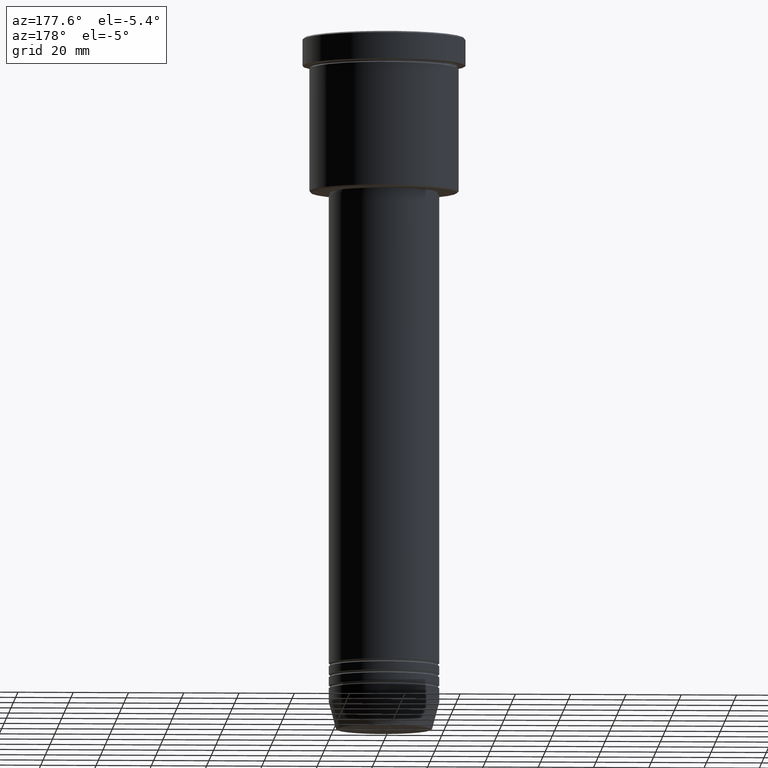
[diagram: clean part render]
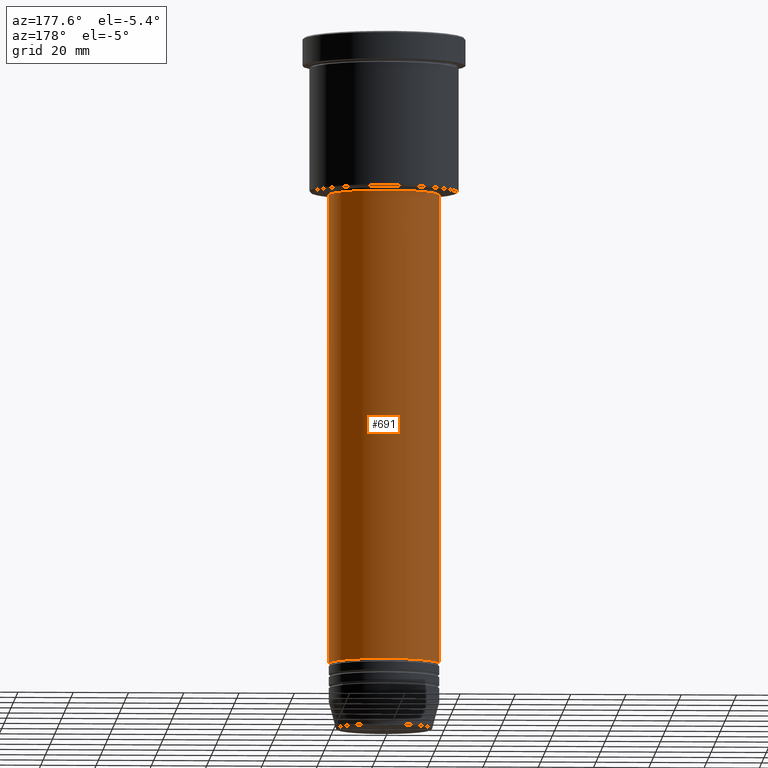
[diagram: same view with one face highlighted and labeled with its STEP entity id]
A machine part, auxiliary view. The second image highlights one B-rep face of the part: STEP entity #691.
In plain terms, the highlighted cylindrical surface (partial cylindrical patch) has radius 20 mm, axis along (-0, -0, 1).
Its self-contained STEP definition (entity closure, byte-faithful):
#15 = EDGE_LOOP ( 'NONE', ( #586, #517, #913, #34 ) ) ;
#34 = ORIENTED_EDGE ( 'NONE', *, *, #991, .F. ) ;
#48 = CARTESIAN_POINT ( 'NONE',  ( 0.000000000000000000, 0.000000000000000000, -226.9999999999998863 ) ) ;
#56 = CARTESIAN_POINT ( 'NONE',  ( -19.99999999999999645, 2.449293598294706119E-15, 0.000000000000000000 ) ) ;
#168 = DIRECTION ( 'NONE',  ( 1.000000000000000000, 0.000000000000000000, 0.000000000000000000 ) ) ;
#221 = LINE ( 'NONE', #491, #1004 ) ;
#234 = VECTOR ( 'NONE', #512, 1000.000000000000000 ) ;
#254 = EDGE_CURVE ( 'NONE', #973, #415, #713, .T. ) ;
#255 = CARTESIAN_POINT ( 'NONE',  ( 0.000000000000000000, 0.000000000000000000, 0.000000000000000000 ) ) ;
#260 = FACE_OUTER_BOUND ( 'NONE', #15, .T. ) ;
#277 = EDGE_CURVE ( 'NONE', #600, #572, #927, .T. ) ;
#333 = DIRECTION ( 'NONE',  ( -0.000000000000000000, -0.000000000000000000, 1.000000000000000000 ) ) ;
#386 = AXIS2_PLACEMENT_3D ( 'NONE', #877, #699, #864 ) ;
#387 = CARTESIAN_POINT ( 'NONE',  ( 19.99999999999999645, 0.000000000000000000, -57.00000000000002842 ) ) ;
#415 = VERTEX_POINT ( 'NONE', #796 ) ;
#416 = DIRECTION ( 'NONE',  ( -0.000000000000000000, -0.000000000000000000, 1.000000000000000000 ) ) ;
#491 = CARTESIAN_POINT ( 'NONE',  ( 19.99999999999999645, 0.000000000000000000, 0.000000000000000000 ) ) ;
#512 = DIRECTION ( 'NONE',  ( -0.000000000000000000, -0.000000000000000000, 1.000000000000000000 ) ) ;
#517 = ORIENTED_EDGE ( 'NONE', *, *, #1154, .T. ) ;
#572 = VERTEX_POINT ( 'NONE', #679 ) ;
#579 = AXIS2_PLACEMENT_3D ( 'NONE', #48, #333, #1158 ) ;
#586 = ORIENTED_EDGE ( 'NONE', *, *, #254, .T. ) ;
#600 = VERTEX_POINT ( 'NONE', #387 ) ;
#633 = AXIS2_PLACEMENT_3D ( 'NONE', #255, #976, #168 ) ;
#679 = CARTESIAN_POINT ( 'NONE',  ( -19.99999999999999645, 2.449293598294706119E-15, -57.00000000000002842 ) ) ;
#691 = ADVANCED_FACE ( 'NONE', ( #260 ), #1155, .T. ) ;
#699 = DIRECTION ( 'NONE',  ( -0.000000000000000000, -0.000000000000000000, 1.000000000000000000 ) ) ;
#713 = CIRCLE ( 'NONE', #579, 20.00000000000000000 ) ;
#796 = CARTESIAN_POINT ( 'NONE',  ( -20.00000000000000000, 2.449293598294706513E-15, -226.9999999999998863 ) ) ;
#843 = CARTESIAN_POINT ( 'NONE',  ( 20.00000000000000000, 0.000000000000000000, -226.9999999999998863 ) ) ;
#864 = DIRECTION ( 'NONE',  ( 1.000000000000000000, 0.000000000000000000, 0.000000000000000000 ) ) ;
#877 = CARTESIAN_POINT ( 'NONE',  ( 0.000000000000000000, 0.000000000000000000, -57.00000000000002842 ) ) ;
#913 = ORIENTED_EDGE ( 'NONE', *, *, #277, .F. ) ;
#927 = CIRCLE ( 'NONE', #386, 19.99999999999999645 ) ;
#973 = VERTEX_POINT ( 'NONE', #843 ) ;
#976 = DIRECTION ( 'NONE',  ( -0.000000000000000000, -0.000000000000000000, 1.000000000000000000 ) ) ;
#991 = EDGE_CURVE ( 'NONE', #973, #600, #221, .T. ) ;
#1004 = VECTOR ( 'NONE', #416, 1000.000000000000000 ) ;
#1153 = LINE ( 'NONE', #56, #234 ) ;
#1154 = EDGE_CURVE ( 'NONE', #415, #572, #1153, .T. ) ;
#1155 = CYLINDRICAL_SURFACE ( 'NONE', #633, 19.99999999999999645 ) ;
#1158 = DIRECTION ( 'NONE',  ( 1.000000000000000000, 0.000000000000000000, 0.000000000000000000 ) ) ;